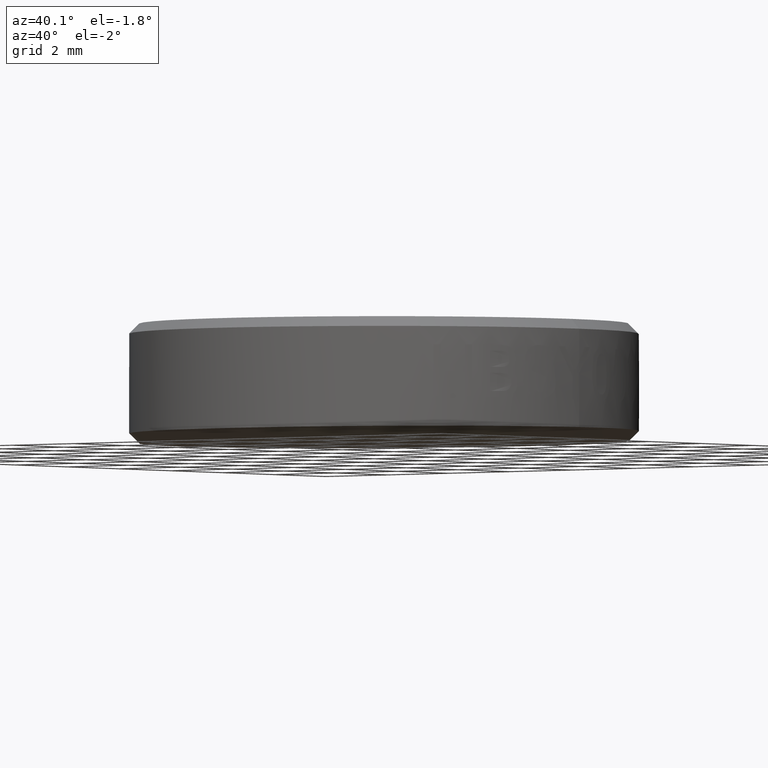
[diagram: clean part render]
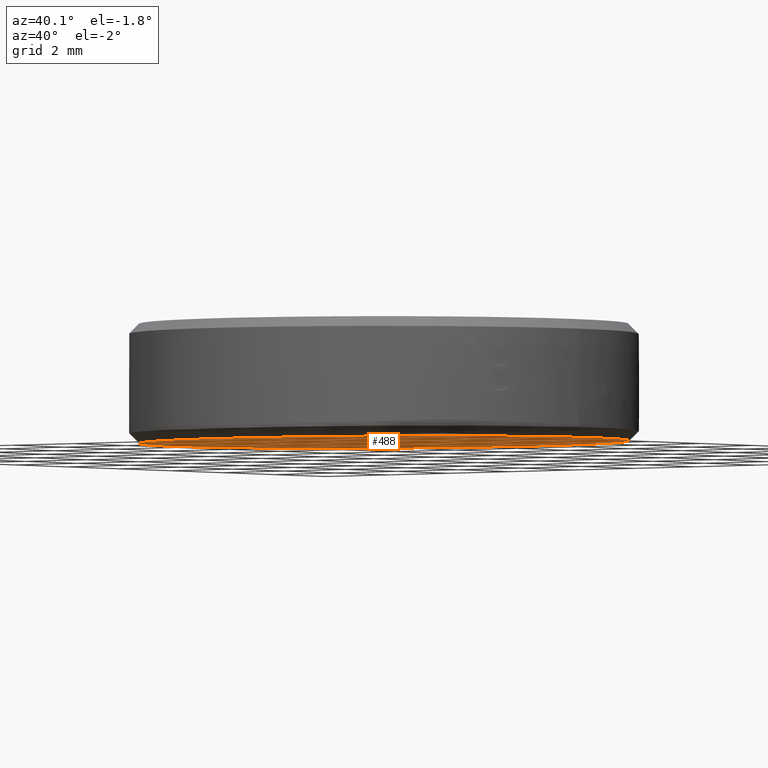
[diagram: same view with one face highlighted and labeled with its STEP entity id]
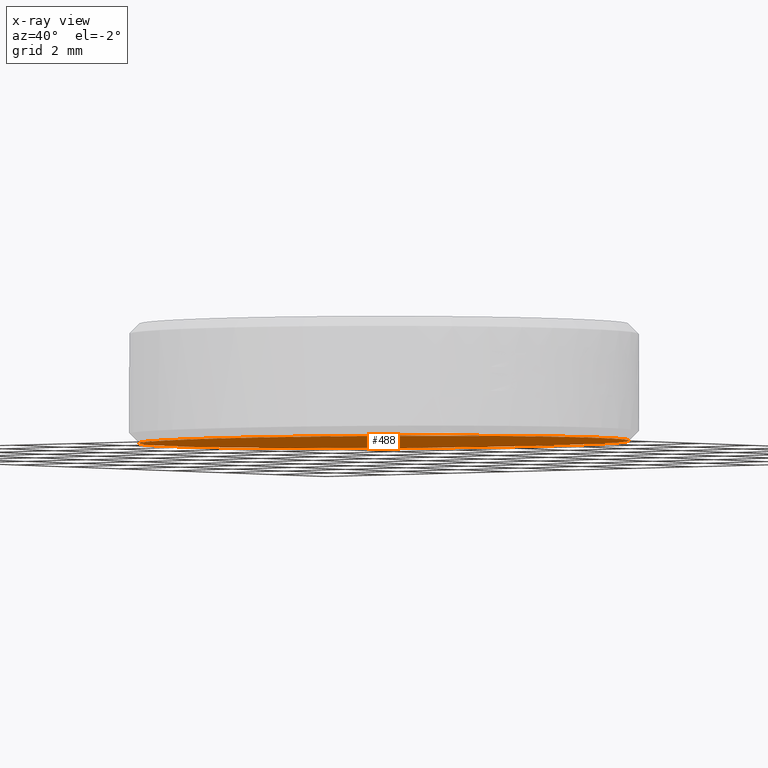
[diagram: x-ray of the same camera — body ghosted, the highlighted face saturated]
A machine part, auxiliary view. The second image highlights one B-rep face of the part: STEP entity #488.
The next image is the same camera in x-ray: the body ghosted, the highlighted face saturated — about 0% of this face is hidden behind the body in this view.
In plain terms, the highlighted planar face has unit normal (0, -0.0087, 1).
Its self-contained STEP definition (entity closure, byte-faithful):
#146 = VERTEX_POINT ( 'NONE', #1188 ) ;
#156 = EDGE_CURVE ( 'NONE', #176, #146, #1294, .T. ) ;
#176 = VERTEX_POINT ( 'NONE', #1291 ) ;
#441 = EDGE_LOOP ( 'NONE', ( #498, #485 ) ) ;
#485 = ORIENTED_EDGE ( 'NONE', *, *, #487, .T. ) ;
#487 = EDGE_CURVE ( 'NONE', #146, #176, #2217, .T. ) ;
#488 = ADVANCED_FACE ( 'NONE', ( #2213 ), #2192, .F. ) ;
#498 = ORIENTED_EDGE ( 'NONE', *, *, #156, .T. ) ;
#1188 = CARTESIAN_POINT ( 'NONE',  ( 2.081668171172168500E-014, 6.104297290509324000, -1.391312994119007900 ) ) ;
#1273 = CARTESIAN_POINT ( 'NONE',  ( 2.081668171172168500E-014, 6.104297290509324000, -1.391312994119007900 ) ) ;
#1274 = CARTESIAN_POINT ( 'NONE',  ( -0.7992637068269758900, 6.104169837505133400, -1.391314106384524900 ) ) ;
#1275 = CARTESIAN_POINT ( 'NONE',  ( -1.578233315842700000, 5.947691721517982100, -1.392679670214891100 ) ) ;
#1276 = CARTESIAN_POINT ( 'NONE',  ( -3.088064434429339800, 5.322035362724340000, -1.398139690540526300 ) ) ;
#1277 = CARTESIAN_POINT ( 'NONE',  ( -3.749799388440342900, 4.882272847816764700, -1.401977439867452700 ) ) ;
#1278 = CARTESIAN_POINT ( 'NONE',  ( -4.879948716410250900, 3.751763028309227400, -1.411843249598441400 ) ) ;
#1279 = CARTESIAN_POINT ( 'NONE',  ( -5.320116672103291800, 3.090301598647614800, -1.417615736043780200 ) ) ;
#1280 = CARTESIAN_POINT ( 'NONE',  ( -5.945322640863613700, 1.580283921399652000, -1.430793460674821200 ) ) ;
#1281 = CARTESIAN_POINT ( 'NONE',  ( -6.102280857876953800, 0.8014075917080205600, -1.437590611429386200 ) ) ;
#1282 = CARTESIAN_POINT ( 'NONE',  ( -6.102025951866275800, -0.7971198204326872500, -1.451540748815030500 ) ) ;
#1283 = CARTESIAN_POINT ( 'NONE',  ( -5.945547835879129800, -1.576089429200225200, -1.458338713603758200 ) ) ;
#1284 = CARTESIAN_POINT ( 'NONE',  ( -5.319891477087789900, -3.085920548296339200, -1.471514810166473000 ) ) ;
#1285 = CARTESIAN_POINT ( 'NONE',  ( -4.880128962008028800, -3.747655502973286500, -1.477289683628457300 ) ) ;
#1286 = CARTESIAN_POINT ( 'NONE',  ( -3.749619142842578700, -4.877804830601981200, -1.487152347394479900 ) ) ;
#1287 = CARTESIAN_POINT ( 'NONE',  ( -3.088157713086074900, -5.317972786639831600, -1.490993634952548100 ) ) ;
#1288 = CARTESIAN_POINT ( 'NONE',  ( -1.578140037185977500, -5.943178755051763000, -1.496449724780867700 ) ) ;
#1289 = CARTESIAN_POINT ( 'NONE',  ( -0.8001878959499241200, -6.099754322044735700, -1.497816139053277600 ) ) ;
#1290 = CARTESIAN_POINT ( 'NONE',  ( 2.081668171172168500E-014, -6.100009519233965200, -1.497818366125408300 ) ) ;
#1291 = CARTESIAN_POINT ( 'NONE',  ( 2.081668171172168500E-014, -6.100009519233965200, -1.497818366125408300 ) ) ;
#1294 = B_SPLINE_CURVE_WITH_KNOTS ( 'NONE', 3,
 ( #1290, #1289, #1288, #1287, #1286, #1285, #1284, #1283, #1282, #1281, #1280, #1279, #1278, #1277, #1276, #1275, #1274, #1273 ),
 .UNSPECIFIED., .F., .F.,
 ( 4, 2, 2, 2, 2, 2, 2, 2, 4 ),
 ( 0.0000000000000000000, 0.06250000000000001400, 0.1250000000000000300, 0.1875000000000000000, 0.2500000000000000000, 0.3124999999999999400, 0.3749999999999999400, 0.4375000000000000000, 0.5000000000000000000 ),
 .UNSPECIFIED. ) ;
#2188 = DIRECTION ( 'NONE',  ( 0.0000000000000000000, -0.9999619230641713100, -0.008726535498366867400 ) ) ;
#2189 = DIRECTION ( 'NONE',  ( 0.0000000000000000000, -0.008726535498366869100, 0.9999619230641714200 ) ) ;
#2190 = CARTESIAN_POINT ( 'NONE',  ( -37.50000000000000000, 6.349999999999999600, -1.389168779057453200 ) ) ;
#2191 = AXIS2_PLACEMENT_3D ( 'NONE', #2190, #2189, #2188 ) ;
#2192 = PLANE ( 'NONE',  #2191 ) ;
#2194 = CARTESIAN_POINT ( 'NONE',  ( 2.081668171172168500E-014, -6.100009519233965200, -1.497818366125408300 ) ) ;
#2195 = CARTESIAN_POINT ( 'NONE',  ( 0.7995935894898698000, -6.100264526886043400, -1.497820591543474100 ) ) ;
#2196 = CARTESIAN_POINT ( 'NONE',  ( 1.577309881201886900, -5.943786610756657900, -1.496455029457240300 ) ) ;
#2197 = CARTESIAN_POINT ( 'NONE',  ( 3.088987869070264600, -5.317364930934959800, -1.490988330276175700 ) ) ;
#2198 = CARTESIAN_POINT ( 'NONE',  ( 3.749799388436616500, -4.877985076545003000, -1.487153920376994800 ) ) ;
#2199 = CARTESIAN_POINT ( 'NONE',  ( 4.879948716414074500, -3.747475257030294000, -1.477288110645943500 ) ) ;
#2200 = CARTESIAN_POINT ( 'NONE',  ( 5.320116672109223900, -3.086013827366568500, -1.471515624200586900 ) ) ;
#2201 = CARTESIAN_POINT ( 'NONE',  ( 5.945322640857793500, -1.575996150130003000, -1.458337899569645000 ) ) ;
#2202 = CARTESIAN_POINT ( 'NONE',  ( 6.102280857877003600, -0.7971198204241704000, -1.451540748814956100 ) ) ;
#2203 = CARTESIAN_POINT ( 'NONE',  ( 6.102025951866336200, 0.8014075916995240200, -1.437590611429460500 ) ) ;
#2204 = CARTESIAN_POINT ( 'NONE',  ( 5.945547835879184900, 1.580377200475951100, -1.430792646640655100 ) ) ;
#2205 = CARTESIAN_POINT ( 'NONE',  ( 5.319891477087832500, 3.090208319571326800, -1.417616550077947000 ) ) ;
#2206 = CARTESIAN_POINT ( 'NONE',  ( 4.880128962007673500, 3.751943274249240900, -1.411841676615952700 ) ) ;
#2207 = CARTESIAN_POINT ( 'NONE',  ( 3.749619142843018800, 4.882092601876767200, -1.401979012849941200 ) ) ;
#2208 = CARTESIAN_POINT ( 'NONE',  ( 3.088157713085959400, 5.322260557915167400, -1.398137725291868500 ) ) ;
#2209 = CARTESIAN_POINT ( 'NONE',  ( 1.578140037186175800, 5.947466526327160000, -1.392681635463547600 ) ) ;
#2210 = CARTESIAN_POINT ( 'NONE',  ( 0.7992637068270311800, 6.104424743513515500, -1.391311881853490400 ) ) ;
#2213 = FACE_OUTER_BOUND ( 'NONE', #441, .T. ) ;
#2216 = CARTESIAN_POINT ( 'NONE',  ( 2.081668171172168500E-014, 6.104297290509324000, -1.391312994119007900 ) ) ;
#2217 = B_SPLINE_CURVE_WITH_KNOTS ( 'NONE', 3,
 ( #2216, #2210, #2209, #2208, #2207, #2206, #2205, #2204, #2203, #2202, #2201, #2200, #2199, #2198, #2197, #2196, #2195, #2194 ),
 .UNSPECIFIED., .F., .F.,
 ( 4, 2, 2, 2, 2, 2, 2, 2, 4 ),
 ( 0.5000000000000000000, 0.5625000000000000000, 0.6250000000000001100, 0.6875000000000001100, 0.7500000000000001100, 0.8125000000000001100, 0.8750000000000000000, 0.9375000000000000000, 1.000000000000000000 ),
 .UNSPECIFIED. ) ;